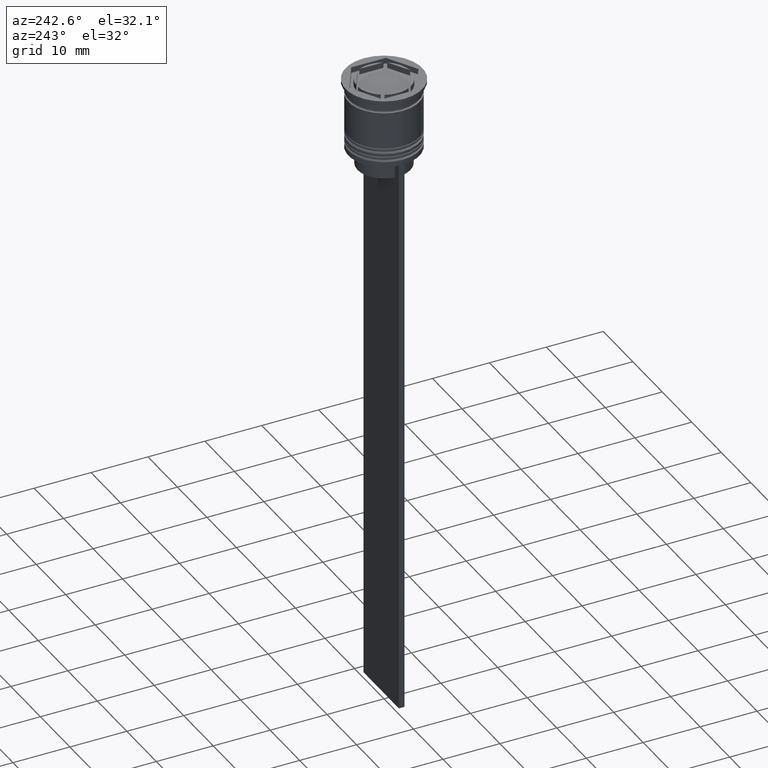
[diagram: clean part render]
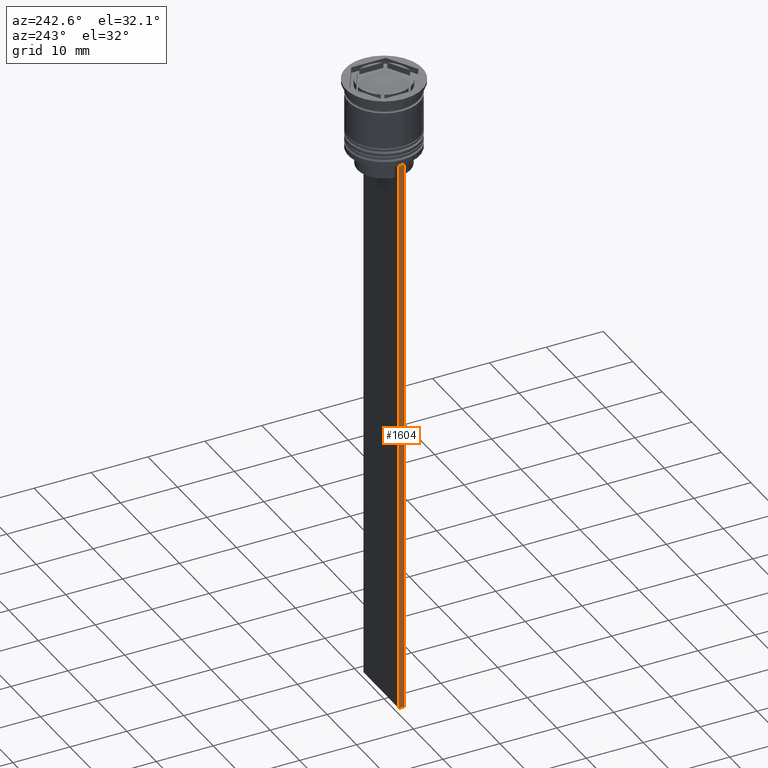
[diagram: same view with one face highlighted and labeled with its STEP entity id]
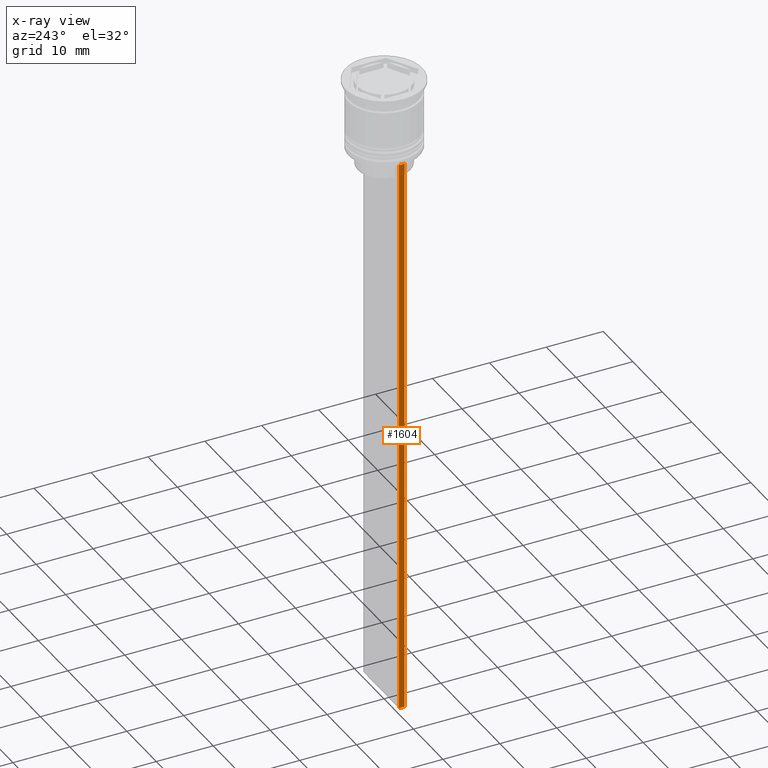
[diagram: x-ray of the same camera — body ghosted, the highlighted face saturated]
A machine part, auxiliary view. The second image highlights one B-rep face of the part: STEP entity #1604.
The next image is the same camera in x-ray: the body ghosted, the highlighted face saturated — about 0% of this face is hidden behind the body in this view.
In plain terms, the highlighted planar face has unit normal (-1, 0, 0).
Its self-contained STEP definition (entity closure, byte-faithful):
#14 = FACE_OUTER_BOUND ( 'NONE', #1238, .T. ) ;
#173 = VECTOR ( 'NONE', #508, 1000.000000000000000 ) ;
#290 = CARTESIAN_POINT ( 'NONE',  ( -5.999999999999983125, -0.5000000000000017764, -12.50000000000000000 ) ) ;
#375 = DIRECTION ( 'NONE',  ( 0.000000000000000000, 0.000000000000000000, 1.000000000000000000 ) ) ;
#392 = ORIENTED_EDGE ( 'NONE', *, *, #2247, .F. ) ;
#508 = DIRECTION ( 'NONE',  ( 0.000000000000000000, -1.000000000000000000, 0.000000000000000000 ) ) ;
#517 = VECTOR ( 'NONE', #2280, 1000.000000000000000 ) ;
#545 = PLANE ( 'NONE',  #1039 ) ;
#595 = LINE ( 'NONE', #2040, #1157 ) ;
#648 = LINE ( 'NONE', #290, #173 ) ;
#736 = DIRECTION ( 'NONE',  ( 0.000000000000000000, 1.000000000000000000, 0.000000000000000000 ) ) ;
#738 = VERTEX_POINT ( 'NONE', #2199 ) ;
#853 = VERTEX_POINT ( 'NONE', #1692 ) ;
#945 = ORIENTED_EDGE ( 'NONE', *, *, #2306, .T. ) ;
#978 = LINE ( 'NONE', #1878, #1001 ) ;
#1001 = VECTOR ( 'NONE', #2277, 1000.000000000000000 ) ;
#1039 = AXIS2_PLACEMENT_3D ( 'NONE', #1266, #1995, #375 ) ;
#1157 = VECTOR ( 'NONE', #736, 1000.000000000000000 ) ;
#1238 = EDGE_LOOP ( 'NONE', ( #392, #945, #1463, #1824 ) ) ;
#1266 = CARTESIAN_POINT ( 'NONE',  ( -5.999999999999983125, -0.5000000000000017764, -0.4584054212077061097 ) ) ;
#1391 = EDGE_CURVE ( 'NONE', #2330, #738, #978, .T. ) ;
#1401 = CARTESIAN_POINT ( 'NONE',  ( -5.999999999999983125, 0.4999999999999982792, -0.4584054212077061097 ) ) ;
#1463 = ORIENTED_EDGE ( 'NONE', *, *, #1630, .F. ) ;
#1604 = ADVANCED_FACE ( 'NONE', ( #14 ), #545, .T. ) ;
#1630 = EDGE_CURVE ( 'NONE', #738, #2070, #595, .T. ) ;
#1692 = CARTESIAN_POINT ( 'NONE',  ( -5.999999999999983125, 0.4999999999999985012, -12.50000000000000000 ) ) ;
#1824 = ORIENTED_EDGE ( 'NONE', *, *, #1391, .F. ) ;
#1878 = CARTESIAN_POINT ( 'NONE',  ( -5.999999999999983125, -0.5000000000000017764, -0.4584054212077061097 ) ) ;
#1995 = DIRECTION ( 'NONE',  ( -1.000000000000000000, 0.000000000000000000, 0.000000000000000000 ) ) ;
#2010 = CARTESIAN_POINT ( 'NONE',  ( -5.999999999999983125, 0.4999999999999982792, -112.5000000000000000 ) ) ;
#2040 = CARTESIAN_POINT ( 'NONE',  ( -5.999999999999983125, -0.5000000000000017764, -112.5000000000000000 ) ) ;
#2070 = VERTEX_POINT ( 'NONE', #2010 ) ;
#2116 = CARTESIAN_POINT ( 'NONE',  ( -5.999999999999983125, -0.5000000000000017764, -12.50000000000000000 ) ) ;
#2125 = LINE ( 'NONE', #1401, #517 ) ;
#2199 = CARTESIAN_POINT ( 'NONE',  ( -5.999999999999983125, -0.5000000000000017764, -112.5000000000000000 ) ) ;
#2247 = EDGE_CURVE ( 'NONE', #853, #2330, #648, .T. ) ;
#2277 = DIRECTION ( 'NONE',  ( 0.000000000000000000, 0.000000000000000000, -1.000000000000000000 ) ) ;
#2280 = DIRECTION ( 'NONE',  ( 0.000000000000000000, 0.000000000000000000, -1.000000000000000000 ) ) ;
#2306 = EDGE_CURVE ( 'NONE', #853, #2070, #2125, .T. ) ;
#2330 = VERTEX_POINT ( 'NONE', #2116 ) ;